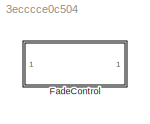
MODEL slx_3ecccce0c504
KIND library
CONFIG AbsTol = auto
CONFIG EnableMultiTasking = off
CONFIG FixedStep = auto
CONFIG MaxStep = auto
CONFIG MinStep = auto
CONFIG RelTol = 1e-3
CONFIG SampleTimeConstraint = Unconstrained
CONFIG SolverName = VariableStepAuto
CONFIG StartTime = 0.0
CONFIG StopTime = 10.0
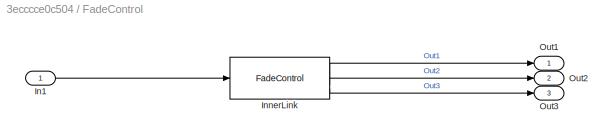
BLOCK [SubSystem] FadeControl
BLOCK [Inport] FadeControl/In1
BLOCK [Reference] FadeControl/InnerLink  REF=FadeControlBtc/FadeControl
  SourceBlock = FadeControlBtc/FadeControl
  SourceProductName = Bose Blocklib
  SourceType = Blocklib FadeControl
BLOCK [Outport] FadeControl/Out1
BLOCK [Outport] FadeControl/Out2
  Port = 2
BLOCK [Outport] FadeControl/Out3
  Port = 3
LINE FadeControl/In1:1 -> FadeControl/InnerLink:1
LINE FadeControl/InnerLink:1 -> FadeControl/Out1:1
LINE FadeControl/InnerLink:2 -> FadeControl/Out2:1
LINE FadeControl/InnerLink:3 -> FadeControl/Out3:1
